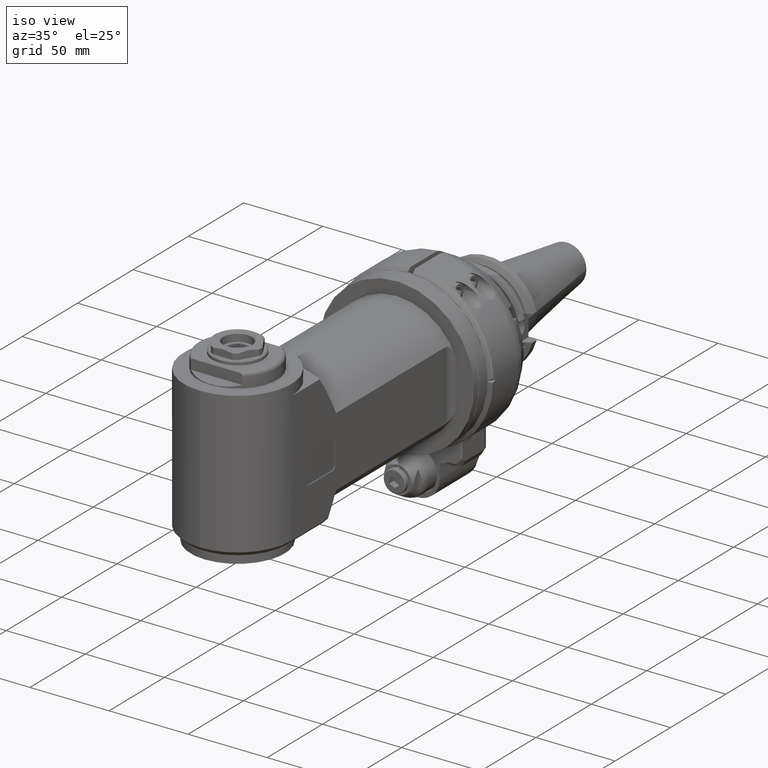
[diagram: clean part render]
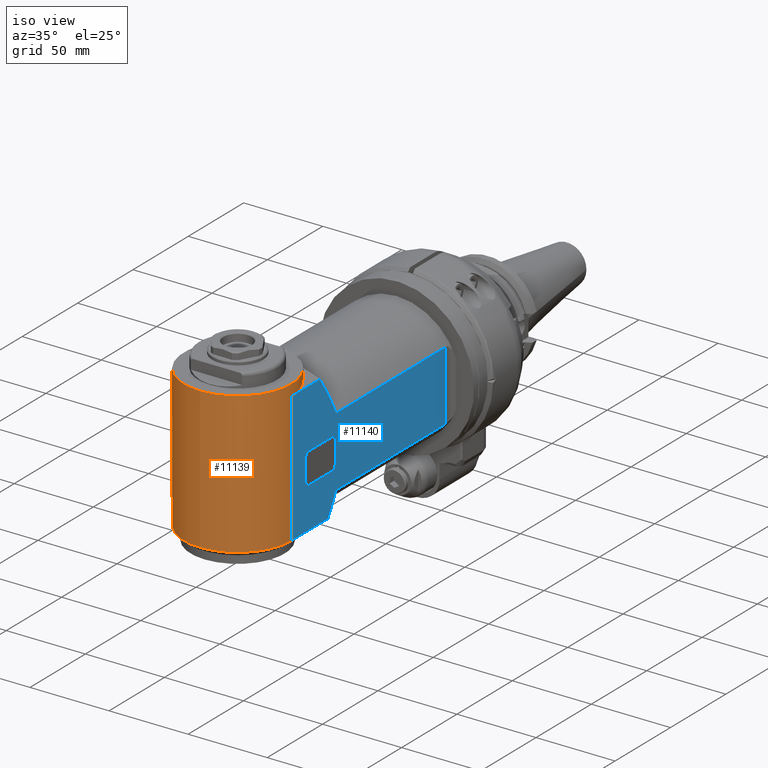
[diagram: same view with the hole feature highlighted: cylindrical wall and planar end face, labeled with their STEP entity ids]
A machine part, iso view. The highlighted faces form one hole feature of diameter 68 mm: the cylindrical wall (entity #11139, orange) and its adjacent planar end face (entity #11140, blue) — they share a circular edge in the B-rep.
Wall:
#1078=CYLINDRICAL_SURFACE('',#12868,34.);
#1673=FACE_OUTER_BOUND('',#2444,.T.);
#2444=EDGE_LOOP('',(#9961,#9962,#9963,#9964,#9965,#9966,#9967,#9968));
#3131=CIRCLE('',#12866,34.);
#3133=CIRCLE('',#12869,34.);
#3134=CIRCLE('',#12870,34.);
#3135=CIRCLE('',#12871,34.);
#3822=LINE('',#50040,#4525);
#3823=LINE('',#50043,#4526);
#3824=LINE('',#50046,#4527);
#4525=VECTOR('',#16047,82.5);
#4526=VECTOR('',#16050,34.);
#4527=VECTOR('',#16053,82.5);
#5524=VERTEX_POINT('',#50031);
#5526=VERTEX_POINT('',#50036);
#5527=VERTEX_POINT('',#50037);
#5528=VERTEX_POINT('',#50039);
#5529=VERTEX_POINT('',#50041);
#5530=VERTEX_POINT('',#50044);
#7027=EDGE_CURVE('',#5524,#5524,#3131,.T.);
#7029=EDGE_CURVE('',#5526,#5527,#3133,.T.);
#7030=EDGE_CURVE('',#5526,#5528,#3822,.T.);
#7031=EDGE_CURVE('',#5529,#5528,#3134,.T.);
#7032=EDGE_CURVE('',#5529,#5524,#3823,.T.);
#7033=EDGE_CURVE('',#5530,#5529,#3135,.T.);
#7034=EDGE_CURVE('',#5527,#5530,#3824,.T.);
#9961=ORIENTED_EDGE('',*,*,#7029,.F.);
#9962=ORIENTED_EDGE('',*,*,#7030,.T.);
#9963=ORIENTED_EDGE('',*,*,#7031,.F.);
#9964=ORIENTED_EDGE('',*,*,#7032,.T.);
#9965=ORIENTED_EDGE('',*,*,#7027,.F.);
#9966=ORIENTED_EDGE('',*,*,#7032,.F.);
#9967=ORIENTED_EDGE('',*,*,#7033,.F.);
#9968=ORIENTED_EDGE('',*,*,#7034,.F.);
#11139=ADVANCED_FACE('',(#1673),#1078,.T.);
#12866=AXIS2_PLACEMENT_3D('',#50032,#16039,#16040);
#12868=AXIS2_PLACEMENT_3D('',#50035,#16043,#16044);
#12869=AXIS2_PLACEMENT_3D('',#50038,#16045,#16046);
#12870=AXIS2_PLACEMENT_3D('',#50042,#16048,#16049);
#12871=AXIS2_PLACEMENT_3D('',#50045,#16051,#16052);
#16039=DIRECTION('center_axis',(1.,0.,0.));
#16040=DIRECTION('ref_axis',(0.,1.,0.));
#16043=DIRECTION('center_axis',(-1.,0.,0.));
#16044=DIRECTION('ref_axis',(0.,1.,0.));
#16045=DIRECTION('center_axis',(-1.,0.,0.));
#16046=DIRECTION('ref_axis',(0.,4.639426098198E-14,1.));
#16047=DIRECTION('',(-1.,0.,0.));
#16048=DIRECTION('center_axis',(-1.,0.,0.));
#16049=DIRECTION('ref_axis',(0.,0.,-1.));
#16050=DIRECTION('',(1.,0.,0.));
#16051=DIRECTION('center_axis',(-1.,0.,0.));
#16052=DIRECTION('ref_axis',(0.,0.,-1.));
#16053=DIRECTION('',(-1.,0.,0.));
#50031=CARTESIAN_POINT('',(43.16004178792,-137.,-1.10931382423499E-13));
#50032=CARTESIAN_POINT('Origin',(43.16004178792,-103.,-1.150951815406E-13));
#50035=CARTESIAN_POINT('Origin',(0.,-103.,-1.150951815406E-13));
#50036=CARTESIAN_POINT('',(36.16004178792,-103.,34.));
#50037=CARTESIAN_POINT('',(36.16004178792,-103.,-34.));
#50038=CARTESIAN_POINT('Origin',(36.16004178792,-103.,-1.150951815406E-13));
#50039=CARTESIAN_POINT('',(-46.33995821208,-103.,34.));
#50040=CARTESIAN_POINT('',(36.16004178792,-103.,34.));
#50041=CARTESIAN_POINT('',(-46.33995821208,-137.,-1.10931382423499E-13));
#50042=CARTESIAN_POINT('Origin',(-46.33995821208,-103.,-1.150951815406E-13));
#50043=CARTESIAN_POINT('',(0.,-137.,-1.10931382423499E-13));
#50044=CARTESIAN_POINT('',(-46.33995821208,-103.,-34.));
#50045=CARTESIAN_POINT('Origin',(-46.33995821208,-103.,-1.150951815406E-13));
#50046=CARTESIAN_POINT('',(36.16004178792,-103.,-34.));
End face:
#409=FACE_BOUND('',#2446,.T.);
#495=(
BOUNDED_CURVE()
B_SPLINE_CURVE(2,(#50054,#50055,#50056),.UNSPECIFIED.,.F.,.F.)
B_SPLINE_CURVE_WITH_KNOTS((3,3),(2.2756650627687,5.3346686842706),
 .UNSPECIFIED.)
CURVE()
GEOMETRIC_REPRESENTATION_ITEM()
RATIONAL_B_SPLINE_CURVE((1.34464906192837,1.54487999002354,1.66066180722595))
REPRESENTATION_ITEM('')
);
#496=(
BOUNDED_CURVE()
B_SPLINE_CURVE(2,(#50061,#50062,#50063),.UNSPECIFIED.,.F.,.F.)
B_SPLINE_CURVE_WITH_KNOTS((3,3),(13.7226077491608,15.5902037276982),
 .UNSPECIFIED.)
CURVE()
GEOMETRIC_REPRESENTATION_ITEM()
RATIONAL_B_SPLINE_CURVE((1.66066180722588,1.58997419683042,1.4878090337523))
REPRESENTATION_ITEM('')
);
#874=PLANE('',#12872);
#1674=FACE_OUTER_BOUND('',#2445,.T.);
#2445=EDGE_LOOP('',(#9969,#9970,#9971,#9972,#9973,#9974,#9975,#9976));
#2446=EDGE_LOOP('',(#9977,#9978,#9979,#9980,#9981,#9982,#9983,#9984));
#3136=CIRCLE('',#12873,2.5);
#3137=CIRCLE('',#12874,2.5);
#3138=CIRCLE('',#12875,2.5);
#3139=CIRCLE('',#12876,2.5);
#3824=LINE('',#50046,#4527);
#3825=LINE('',#50050,#4528);
#3826=LINE('',#50052,#4529);
#3827=LINE('',#50057,#4530);
#3828=LINE('',#50059,#4531);
#3829=LINE('',#50064,#4532);
#3830=LINE('',#50067,#4533);
#3831=LINE('',#50071,#4534);
#3832=LINE('',#50075,#4535);
#3833=LINE('',#50079,#4536);
#4527=VECTOR('',#16053,82.5);
#4528=VECTOR('',#16056,44.01136216933);
#4529=VECTOR('',#16057,99.20009963118);
#4530=VECTOR('',#16058,25.60842374321);
#4531=VECTOR('',#16059,10.);
#4532=VECTOR('',#16060,99.20009963118);
#4533=VECTOR('',#16061,14.5);
#4534=VECTOR('',#16064,21.5);
#4535=VECTOR('',#16067,14.5);
#4536=VECTOR('',#16070,21.5);
#5527=VERTEX_POINT('',#50037);
#5530=VERTEX_POINT('',#50044);
#5531=VERTEX_POINT('',#50048);
#5532=VERTEX_POINT('',#50049);
#5533=VERTEX_POINT('',#50051);
#5534=VERTEX_POINT('',#50053);
#5535=VERTEX_POINT('',#50058);
#5536=VERTEX_POINT('',#50060);
#5537=VERTEX_POINT('',#50065);
#5538=VERTEX_POINT('',#50066);
#5539=VERTEX_POINT('',#50068);
#5540=VERTEX_POINT('',#50070);
#5541=VERTEX_POINT('',#50072);
#5542=VERTEX_POINT('',#50074);
#5543=VERTEX_POINT('',#50076);
#5544=VERTEX_POINT('',#50078);
#7034=EDGE_CURVE('',#5527,#5530,#3824,.T.);
#7035=EDGE_CURVE('',#5531,#5532,#3825,.T.);
#7036=EDGE_CURVE('',#5533,#5531,#3826,.T.);
#7037=EDGE_CURVE('',#5534,#5533,#495,.T.);
#7038=EDGE_CURVE('',#5534,#5527,#3827,.T.);
#7039=EDGE_CURVE('',#5530,#5535,#3828,.T.);
#7040=EDGE_CURVE('',#5536,#5535,#496,.T.);
#7041=EDGE_CURVE('',#5532,#5536,#3829,.T.);
#7042=EDGE_CURVE('',#5537,#5538,#3830,.T.);
#7043=EDGE_CURVE('',#5538,#5539,#3136,.T.);
#7044=EDGE_CURVE('',#5539,#5540,#3831,.T.);
#7045=EDGE_CURVE('',#5540,#5541,#3137,.T.);
#7046=EDGE_CURVE('',#5541,#5542,#3832,.T.);
#7047=EDGE_CURVE('',#5542,#5543,#3138,.T.);
#7048=EDGE_CURVE('',#5543,#5544,#3833,.T.);
#7049=EDGE_CURVE('',#5544,#5537,#3139,.T.);
#9969=ORIENTED_EDGE('',*,*,#7035,.F.);
#9970=ORIENTED_EDGE('',*,*,#7036,.F.);
#9971=ORIENTED_EDGE('',*,*,#7037,.F.);
#9972=ORIENTED_EDGE('',*,*,#7038,.T.);
#9973=ORIENTED_EDGE('',*,*,#7034,.T.);
#9974=ORIENTED_EDGE('',*,*,#7039,.T.);
#9975=ORIENTED_EDGE('',*,*,#7040,.F.);
#9976=ORIENTED_EDGE('',*,*,#7041,.F.);
#9977=ORIENTED_EDGE('',*,*,#7042,.T.);
#9978=ORIENTED_EDGE('',*,*,#7043,.T.);
#9979=ORIENTED_EDGE('',*,*,#7044,.T.);
#9980=ORIENTED_EDGE('',*,*,#7045,.T.);
#9981=ORIENTED_EDGE('',*,*,#7046,.T.);
#9982=ORIENTED_EDGE('',*,*,#7047,.T.);
#9983=ORIENTED_EDGE('',*,*,#7048,.T.);
#9984=ORIENTED_EDGE('',*,*,#7049,.T.);
#11140=ADVANCED_FACE('',(#1674,#409),#874,.F.);
#12872=AXIS2_PLACEMENT_3D('',#50047,#16054,#16055);
#12873=AXIS2_PLACEMENT_3D('',#50069,#16062,#16063);
#12874=AXIS2_PLACEMENT_3D('',#50073,#16065,#16066);
#12875=AXIS2_PLACEMENT_3D('',#50077,#16068,#16069);
#12876=AXIS2_PLACEMENT_3D('',#50080,#16071,#16072);
#16053=DIRECTION('',(-1.,0.,0.));
#16054=DIRECTION('center_axis',(0.,0.,1.));
#16055=DIRECTION('ref_axis',(0.,1.,0.));
#16056=DIRECTION('',(-1.,0.,0.));
#16057=DIRECTION('',(0.,1.,0.));
#16058=DIRECTION('',(0.,-1.,-2.469433656549E-14));
#16059=DIRECTION('',(0.,1.,0.));
#16060=DIRECTION('',(0.,-1.,0.));
#16061=DIRECTION('',(-1.,0.,0.));
#16062=DIRECTION('center_axis',(0.,0.,1.));
#16063=DIRECTION('ref_axis',(0.,1.,0.));
#16064=DIRECTION('',(0.,-1.,0.));
#16065=DIRECTION('center_axis',(0.,0.,1.));
#16066=DIRECTION('ref_axis',(-1.,1.136868377216E-14,0.));
#16067=DIRECTION('',(1.,0.,0.));
#16068=DIRECTION('center_axis',(0.,0.,1.));
#16069=DIRECTION('ref_axis',(0.,-1.,0.));
#16070=DIRECTION('',(0.,1.,0.));
#16071=DIRECTION('center_axis',(0.,0.,1.));
#16072=DIRECTION('ref_axis',(1.,0.,0.));
#50037=CARTESIAN_POINT('',(36.16004178792,-103.,-34.));
#50044=CARTESIAN_POINT('',(-46.33995821208,-103.,-34.));
#50046=CARTESIAN_POINT('',(36.16004178792,-103.,-34.));
#50047=CARTESIAN_POINT('Origin',(-72.98996061208,-141.3182458366,-34.));
#50048=CARTESIAN_POINT('',(11.16572287258,36.5,-34.));
#50049=CARTESIAN_POINT('',(-32.84563929675,36.5,-34.));
#50050=CARTESIAN_POINT('',(11.16572287258,36.5,-34.));
#50051=CARTESIAN_POINT('',(11.16572287258,-62.70009963118,-34.));
#50052=CARTESIAN_POINT('',(11.16572287258,-62.70009963118,-34.));
#50053=CARTESIAN_POINT('',(36.16004178792,-77.39157625679,-34.));
#50054=CARTESIAN_POINT('Ctrl Pts',(36.1600417879104,-77.3915762567888,-34.));
#50055=CARTESIAN_POINT('Ctrl Pts',(21.4416755309996,-67.3851624289664,-34.));
#50056=CARTESIAN_POINT('Ctrl Pts',(11.165722872577,-62.7000996311747,-34.));
#50057=CARTESIAN_POINT('',(36.16004178792,-77.39157625679,-34.));
#50058=CARTESIAN_POINT('',(-46.3399582106856,-69.9628139920171,-34.0000000005425));
#50059=CARTESIAN_POINT('',(-46.33995821208,-114.397870991075,-34.));
#50060=CARTESIAN_POINT('',(-32.84563929675,-62.70009963118,-34.));
#50061=CARTESIAN_POINT('Ctrl Pts',(-32.8456392967462,-62.7000996311764,
-34.));
#50062=CARTESIAN_POINT('Ctrl Pts',(-38.9414252023455,-65.479320275622,-34.));
#50063=CARTESIAN_POINT('Ctrl Pts',(-46.3399582105359,-69.9628139922641,
-34.));
#50064=CARTESIAN_POINT('',(-32.84563929675,36.5,-34.));
#50065=CARTESIAN_POINT('',(-3.589958212082,-63.50000047237,-34.));
#50066=CARTESIAN_POINT('',(-18.08995821208,-63.50000047237,-34.));
#50067=CARTESIAN_POINT('',(-3.589958212082,-63.50000047237,-34.));
#50068=CARTESIAN_POINT('',(-20.58995821208,-66.00000047237,-34.));
#50069=CARTESIAN_POINT('Origin',(-18.08995821208,-66.00000047237,-34.));
#50070=CARTESIAN_POINT('',(-20.58995821208,-87.50000047237,-34.));
#50071=CARTESIAN_POINT('',(-20.58995821208,-66.00000047237,-34.));
#50072=CARTESIAN_POINT('',(-18.08995821208,-90.00000047237,-34.));
#50073=CARTESIAN_POINT('Origin',(-18.08995821208,-87.50000047237,-34.));
#50074=CARTESIAN_POINT('',(-3.589958212082,-90.00000047237,-34.));
#50075=CARTESIAN_POINT('',(-18.08995821208,-90.00000047237,-34.));
#50076=CARTESIAN_POINT('',(-1.089958212082,-87.50000047237,-34.));
#50077=CARTESIAN_POINT('Origin',(-3.589958212082,-87.50000047237,-34.));
#50078=CARTESIAN_POINT('',(-1.089958212082,-66.00000047237,-34.));
#50079=CARTESIAN_POINT('',(-1.089958212082,-87.50000047237,-34.));
#50080=CARTESIAN_POINT('Origin',(-3.589958212082,-66.00000047237,-34.));